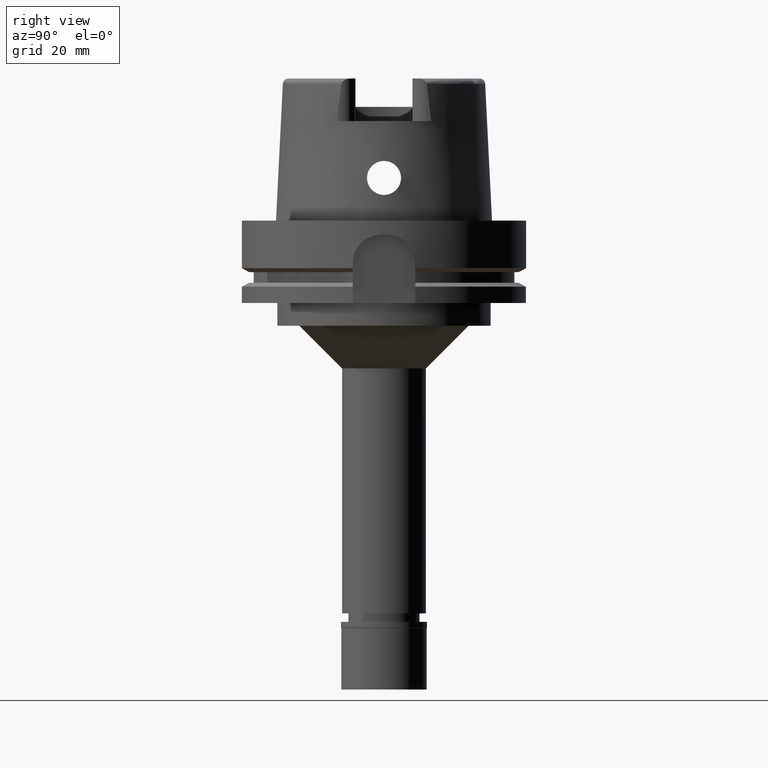
[diagram: clean part render]
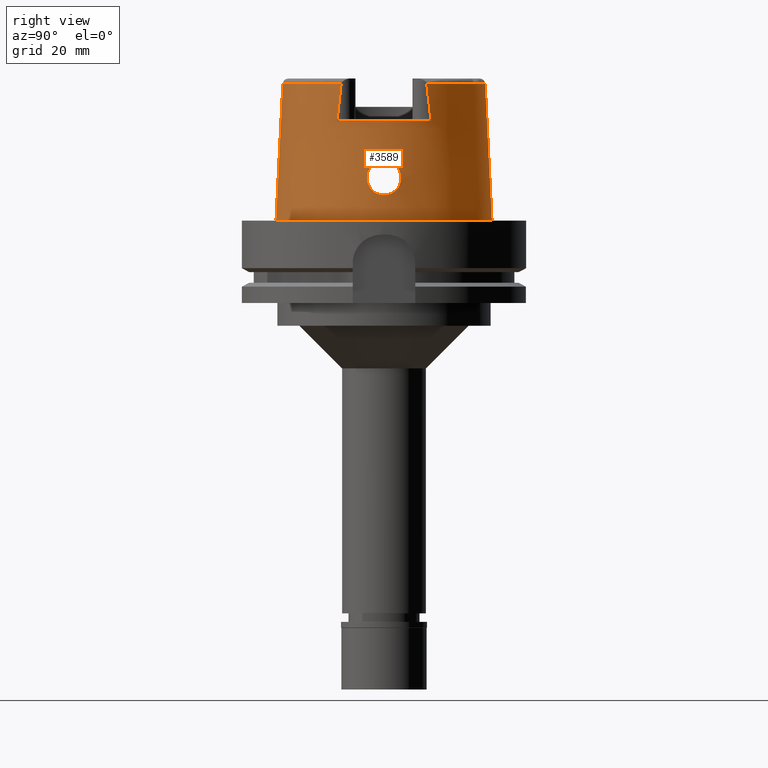
[diagram: same view with one face highlighted and labeled with its STEP entity id]
A machine part, right view. The second image highlights one B-rep face of the part: STEP entity #3589.
In plain terms, the highlighted conical surface has half-angle 2.862 deg.
Its self-contained STEP definition (entity closure, byte-faithful):
#7 = CARTESIAN_POINT ( 'NONE',  ( 36.72267357466340343, 5.422019584408327653, 17.58897493193915906 ) ) ;
#30 = CARTESIAN_POINT ( 'NONE',  ( 0.0000000000000000000, 0.0000000000000000000, 48.09987853799000135 ) ) ;
#33 = CARTESIAN_POINT ( 'NONE',  ( 37.10389505768392127, -4.887757585974280339, 11.51449243856041704 ) ) ;
#94 = CARTESIAN_POINT ( 'NONE',  ( 36.94822053459562738, -5.554798339131356677, 12.73190405547800275 ) ) ;
#95 = CARTESIAN_POINT ( 'NONE',  ( 36.84474273342814143, 3.423711952793725644, 19.92753559525237250 ) ) ;
#193 = CARTESIAN_POINT ( 'NONE',  ( 32.25000000000000000, -16.05145953505061129, 39.57800528808439822 ) ) ;
#208 = B_SPLINE_CURVE_WITH_KNOTS ( 'NONE', 3,
 ( #2250, #1861, #193, #3583 ),
 .UNSPECIFIED., .F., .F.,
 ( 4, 4 ),
 ( 0.0000000000000000000, 1.000000000000000000 ),
 .UNSPECIFIED. ) ;
#211 = VERTEX_POINT ( 'NONE', #5477 ) ;
#227 = ORIENTED_EDGE ( 'NONE', *, *, #3927, .F. ) ;
#264 = CARTESIAN_POINT ( 'NONE',  ( 37.48354635218326791, 1.945613778291623630, 9.322656526188687565 ) ) ;
#267 = DIRECTION ( 'NONE',  ( 0.0000000000000000000, -1.000000000000000000, 0.0000000000000000000 ) ) ;
#287 = CARTESIAN_POINT ( 'NONE',  ( 36.94004933455386208, -5.584378040729330195, 12.80547493326117703 ) ) ;
#288 = CARTESIAN_POINT ( 'NONE',  ( 37.46510143188385200, 2.193262516984797461, 9.415134949132264452 ) ) ;
#304 = AXIS2_PLACEMENT_3D ( 'NONE', #4324, #3486, #3924 ) ;
#320 = CARTESIAN_POINT ( 'NONE',  ( 36.90757951137189252, -5.696189673111457630, 13.11208310119264908 ) ) ;
#321 = CARTESIAN_POINT ( 'NONE',  ( 36.71984044655581414, 5.850219281318126185, 16.34658812604090272 ) ) ;
#351 = CARTESIAN_POINT ( 'NONE',  ( 36.74230684364644617, -5.981357832372287575, 15.48226559619353004 ) ) ;
#352 = CARTESIAN_POINT ( 'NONE',  ( 36.95523982656138884, 5.529030572528006005, 12.66964793382715726 ) ) ;
#375 = CARTESIAN_POINT ( 'NONE',  ( 36.71996599173408526, -5.517288947097909180, 17.35803693623842392 ) ) ;
#376 = CARTESIAN_POINT ( 'NONE',  ( 36.80815762369860522, 5.957537315262850797, 14.26277308271544797 ) ) ;
#402 = EDGE_CURVE ( 'NONE', #2395, #1645, #2281, .T. ) ;
#404 = CARTESIAN_POINT ( 'NONE',  ( 36.95774489227890314, 5.519693041102756048, 12.64763322360844278 ) ) ;
#438 = CARTESIAN_POINT ( 'NONE',  ( 37.00631580238255935, 5.327637900931077475, 12.23846285490348151 ) ) ;
#440 = CARTESIAN_POINT ( 'NONE',  ( 0.0000000000000000000, -38.00001658251999714, 6.821210263297000155E-13 ) ) ;
#468 = CARTESIAN_POINT ( 'NONE',  ( 37.45644412486604580, -2.300685249213640038, 9.458609365831746274 ) ) ;
#484 = CARTESIAN_POINT ( 'NONE',  ( 36.84722144884961637, 3.382054583819614990, 19.95620573746380799 ) ) ;
#519 = CARTESIAN_POINT ( 'NONE',  ( 32.25000000000000000, 15.55558130752602430, 43.94359285154830985 ) ) ;
#628 = CARTESIAN_POINT ( 'NONE',  ( 36.94593093642748016, -0.7414479164590389582, 20.96696163295313653 ) ) ;
#643 = DIRECTION ( 'NONE',  ( 0.0000000000000000000, 0.0000000000000000000, 1.000000000000000000 ) ) ;
#657 = CARTESIAN_POINT ( 'NONE',  ( 37.44482247248136986, 2.444141203554807795, 9.517352663551536196 ) ) ;
#668 = CARTESIAN_POINT ( 'NONE',  ( 0.0000000000000000000, 0.0000000000000000000, 1.023181539494999863E-12 ) ) ;
#693 = CARTESIAN_POINT ( 'NONE',  ( 37.55000165824999669, 0.3725651092410616205, 9.000000000000001776 ) ) ;
#718 = CARTESIAN_POINT ( 'NONE',  ( 36.71471743786340625, -5.699807342222302786, 16.91677120291535630 ) ) ;
#743 = CARTESIAN_POINT ( 'NONE',  ( 36.72592427972574569, -5.364110251283705999, 17.68975218841853803 ) ) ;
#776 = CARTESIAN_POINT ( 'NONE',  ( 36.81715631362708763, -3.887142167174182816, 19.57163267875188595 ) ) ;
#777 = CARTESIAN_POINT ( 'NONE',  ( 36.71655597566285678, 5.670117240180092999, 16.96656458698912573 ) ) ;
#787 = CARTESIAN_POINT ( 'NONE',  ( 37.55000165825000380, 0.0000000000000000000, 9.000000000000000000 ) ) ;
#808 = CARTESIAN_POINT ( 'NONE',  ( 36.75857722100720082, -5.999184118844141267, 15.10173734126936473 ) ) ;
#809 = CARTESIAN_POINT ( 'NONE',  ( 37.35521687651932154, 3.298586860854181957, 9.988077525046296756 ) ) ;
#829 = CARTESIAN_POINT ( 'NONE',  ( 36.71826982678383189, 5.576903453816120404, 17.21342714078873115 ) ) ;
#858 = CARTESIAN_POINT ( 'NONE',  ( 36.71763611367480706, 5.802818758824429324, 16.53846350265038012 ) ) ;
#868 = CARTESIAN_POINT ( 'NONE',  ( 37.44044173439526446, -2.487510234731720171, 9.539756727519119295 ) ) ;
#886 = CARTESIAN_POINT ( 'NONE',  ( 36.78447426091580041, 4.390347064633015606, 19.09029678280415965 ) ) ;
#897 = VERTEX_POINT ( 'NONE', #4031 ) ;
#905 = DIRECTION ( 'NONE',  ( 0.0000000000000000000, 0.0000000000000000000, -1.000000000000000000 ) ) ;
#911 = CARTESIAN_POINT ( 'NONE',  ( 32.25000000000000000, 16.55285457013000183, 35.00000000000000000 ) ) ;
#922 = ORIENTED_EDGE ( 'NONE', *, *, #2487, .F. ) ;
#969 = CARTESIAN_POINT ( 'NONE',  ( 37.16180421870889461, -4.583096864712658203, 11.12637670602710571 ) ) ;
#974 = CARTESIAN_POINT ( 'NONE',  ( 32.25000552016999222, -15.06439830629000021, 48.10004155012000382 ) ) ;
#995 = CARTESIAN_POINT ( 'NONE',  ( 36.88711994964290142, 2.625412980765178705, 20.39673761976636257 ) ) ;
#1012 = CARTESIAN_POINT ( 'NONE',  ( 36.93369841153610622, 1.519969757007889832, 20.86588656624419968 ) ) ;
#1049 = EDGE_CURVE ( 'NONE', #3246, #4046, #5103, .T. ) ;
#1127 = CARTESIAN_POINT ( 'NONE',  ( 36.85123313282241497, -3.313108648784872212, 20.00235078773789610 ) ) ;
#1128 = CARTESIAN_POINT ( 'NONE',  ( 37.55000165825000380, 0.0000000000000000000, 9.000000000000000000 ) ) ;
#1159 = CARTESIAN_POINT ( 'NONE',  ( 36.85457335903686271, -3.253798265162993975, 20.04124897951066586 ) ) ;
#1185 = CARTESIAN_POINT ( 'NONE',  ( 36.91960058821116775, -1.808267391337456287, 20.72193690257373433 ) ) ;
#1186 = CARTESIAN_POINT ( 'NONE',  ( 37.06201828075850102, 5.085026754920343173, 11.80942053229219546 ) ) ;
#1191 = DIRECTION ( 'NONE',  ( 0.0000000000000000000, 1.000000000000000000, 0.0000000000000000000 ) ) ;
#1194 = CARTESIAN_POINT ( 'NONE',  ( 37.42948613190983309, -2.608080179526660380, 9.595763437132761808 ) ) ;
#1218 = CARTESIAN_POINT ( 'NONE',  ( 36.90156843378151308, -2.292518513694088877, 20.54476195605109368 ) ) ;
#1219 = CARTESIAN_POINT ( 'NONE',  ( 36.74922096801761029, 4.946676914269941605, 18.40126551930861964 ) ) ;
#1226 = CARTESIAN_POINT ( 'NONE',  ( 37.27342246940378345, -3.931114298059343870, 10.44490115557643861 ) ) ;
#1240 = CARTESIAN_POINT ( 'NONE',  ( 36.85246824458691606, -5.860252696467920686, 13.69782209348205804 ) ) ;
#1241 = CARTESIAN_POINT ( 'NONE',  ( 37.35850046496491217, 3.271442713560498206, 9.970292572780893536 ) ) ;
#1268 = CARTESIAN_POINT ( 'NONE',  ( 36.74416363428795052, 5.999695096182692033, 15.38426938620559170 ) ) ;
#1294 = CARTESIAN_POINT ( 'NONE',  ( 36.90767284457509589, 5.704294105478040500, 13.09073213766312804 ) ) ;
#1323 = CARTESIAN_POINT ( 'NONE',  ( 32.24997259521845194, 15.06456602766139952, 48.09965195381819569 ) ) ;
#1328 = CARTESIAN_POINT ( 'NONE',  ( 36.96692811447792337, -5.486345123641728883, 12.56527835986653940 ) ) ;
#1361 = ORIENTED_EDGE ( 'NONE', *, *, #4513, .T. ) ;
#1374 = CARTESIAN_POINT ( 'NONE',  ( 37.07431617320159489, -5.027968615222170534, 11.72590029850743854 ) ) ;
#1375 = CARTESIAN_POINT ( 'NONE',  ( 36.82572834283891439, 3.739103409472152251, 19.69347930708578076 ) ) ;
#1467 = CARTESIAN_POINT ( 'NONE',  ( 37.42924552239432501, 2.615721727719046541, 9.596655347575488548 ) ) ;
#1545 = CARTESIAN_POINT ( 'NONE',  ( 36.90313027499023946, -2.254538170107786232, 20.56033827074029929 ) ) ;
#1549 = CARTESIAN_POINT ( 'NONE',  ( 32.25000000000000000, 16.55285457013000183, 35.00000000000000000 ) ) ;
#1554 = CIRCLE ( 'NONE', #304, 36.24995854370000359 ) ;
#1581 = CARTESIAN_POINT ( 'NONE',  ( 36.87477302260239753, -2.874498642703776419, 20.26753687286203487 ) ) ;
#1610 = CARTESIAN_POINT ( 'NONE',  ( 36.92871493951681572, -1.515123200016508465, 20.80912843645324273 ) ) ;
#1611 = CARTESIAN_POINT ( 'NONE',  ( 36.79297988199979130, 4.259196576708383475, 19.22603776392183406 ) ) ;
#1616 = CARTESIAN_POINT ( 'NONE',  ( 37.20985621195186610, -4.309484051094956136, 10.82514528166413115 ) ) ;
#1630 = CARTESIAN_POINT ( 'NONE',  ( 36.90486097320912506, -2.211800909003299065, 20.57755752649597270 ) ) ;
#1631 = CARTESIAN_POINT ( 'NONE',  ( 36.73088728630788324, 5.963273442928997525, 15.76995501664744559 ) ) ;
#1645 = VERTEX_POINT ( 'NONE', #1323 ) ;
#1661 = CARTESIAN_POINT ( 'NONE',  ( 36.76210510961053757, -5.999969291128361526, 15.02948134560296189 ) ) ;
#1662 = CARTESIAN_POINT ( 'NONE',  ( 37.23074821846914517, 4.183444221319813749, 10.69895465927429790 ) ) ;
#1666 = FACE_OUTER_BOUND ( 'NONE', #4428, .T. ) ;
#1670 = CARTESIAN_POINT ( 'NONE',  ( 37.45167754845740404, -2.358007411872085957, 9.482699018399465274 ) ) ;
#1691 = CARTESIAN_POINT ( 'NONE',  ( 37.27380537146910200, 3.905228964637531330, 10.44364606190405986 ) ) ;
#1712 = DIRECTION ( 'NONE',  ( 0.9060280460804950309, -0.4232176505245974218, 0.0000000000000000000 ) ) ;
#1715 = CARTESIAN_POINT ( 'NONE',  ( 36.71654653490774933, 5.716830651085251347, 16.82420974150458193 ) ) ;
#1733 = AXIS2_PLACEMENT_3D ( 'NONE', #668, #643, #3307 ) ;
#1744 = CARTESIAN_POINT ( 'NONE',  ( 36.94998175923000616, 0.7278236856474631367, 21.00000000000000355 ) ) ;
#1774 = CARTESIAN_POINT ( 'NONE',  ( 37.05825142641074876, -5.102631713474581332, 11.84271860122617603 ) ) ;
#1775 = CARTESIAN_POINT ( 'NONE',  ( 36.83279304894241335, 3.623117239827894132, 19.78433902146063161 ) ) ;
#1847 = CARTESIAN_POINT ( 'NONE',  ( 36.89720180196173516, 2.396385874092441970, 20.50089800300801457 ) ) ;
#1861 = CARTESIAN_POINT ( 'NONE',  ( 32.25000000000000000, -15.55533878959061234, 43.94468580479106379 ) ) ;
#1879 = CARTESIAN_POINT ( 'NONE',  ( 37.45939340440274634, 2.264876689967703971, 9.443880539945848085 ) ) ;
#1967 = CARTESIAN_POINT ( 'NONE',  ( 36.80191179852743488, -4.125073597715507745, 19.35752356896822235 ) ) ;
#1977 = EDGE_CURVE ( 'NONE', #4046, #3246, #2216, .T. ) ;
#1985 = LINE ( 'NONE', #3703, #4991 ) ;
#1988 = CARTESIAN_POINT ( 'NONE',  ( 36.91466364792063359, -1.955066589415452416, 20.67420690998043042 ) ) ;
#2026 = CARTESIAN_POINT ( 'NONE',  ( 36.76087165488235797, -5.999800204498523470, 15.05438827538915092 ) ) ;
#2027 = CARTESIAN_POINT ( 'NONE',  ( 36.76566029138945169, 5.999906815838277119, 14.95958094295161267 ) ) ;
#2054 = CARTESIAN_POINT ( 'NONE',  ( 36.71620885480513863, -5.813391255878267216, 16.53515844540856250 ) ) ;
#2055 = CARTESIAN_POINT ( 'NONE',  ( 36.77170340282817307, 5.998323807747826031, 14.84586871748389569 ) ) ;
#2059 = CARTESIAN_POINT ( 'NONE',  ( 37.44575798109403308, -2.427495654721145257, 9.512690912807336474 ) ) ;
#2078 = CARTESIAN_POINT ( 'NONE',  ( 36.78368377135412715, 5.989813296407689336, 14.63850693621158250 ) ) ;
#2105 = CARTESIAN_POINT ( 'NONE',  ( 37.17923918027254615, -4.486608826938915939, 11.01410227273799336 ) ) ;
#2106 = CARTESIAN_POINT ( 'NONE',  ( 36.86953088259854638, 5.819979767177820840, 13.48870076563281550 ) ) ;
#2109 = EDGE_CURVE ( 'NONE', #3667, #1645, #3504, .T. ) ;
#2114 = CARTESIAN_POINT ( 'NONE',  ( 37.45579137639118983, -2.308598250137419594, 9.461905677811456528 ) ) ;
#2129 = CARTESIAN_POINT ( 'NONE',  ( 36.82225838300249876, 5.930942061816907973, 14.07103620850404724 ) ) ;
#2154 = CARTESIAN_POINT ( 'NONE',  ( 36.94685047858486371, -5.559788466733562196, 12.74416401146934774 ) ) ;
#2212 = CARTESIAN_POINT ( 'NONE',  ( 32.24997259521845194, 15.06456602766139952, 48.09965195381819569 ) ) ;
#2216 = B_SPLINE_CURVE_WITH_KNOTS ( 'NONE', 3,
 ( #1128, #693, #4496, #2442, #2393, #3211, #264, #4121, #288, #2865, #4149, #1879, #657, #1467, #4893, #2751, #4473, #2358, #4067, #1241, #3821, #809, #5084, #3323, #4247, #4638, #1691, #4185, #5487, #4667, #1662, #2977, #2559, #5054, #5030, #4695, #2526, #3406, #4280, #1186, #2953, #438, #3350, #5138, #2890, #404, #352, #1294, #2106, #2129, #376, #2585, #2078, #5109, #2055, #3769, #2027, #4603, #1268, #1631, #321, #858, #1715, #777, #5514, #829, #3379, #5542, #2474, #3845, #7, #3796, #1219, #4217, #3013, #3431, #4727, #886, #3745, #2930, #5461, #1611, #2502, #2238, #1375, #1775, #4857, #95, #484, #3930, #3094, #4834, #995, #3951, #1847, #3064, #1012, #1744, #5257 ),
 .UNSPECIFIED., .F., .F.,
 ( 4, 2, 2, 1, 1, 1, 2, 2, 2, 2, 1, 1, 1, 2, 2, 2, 2, 1, 1, 2, 2, 2, 2, 2, 2, 1, 1, 2, 2, 2, 2, 2, 1, 2, 2, 2, 2, 1, 1, 1, 1, 2, 2, 2, 2, 2, 1, 1, 2, 2, 2, 1, 2, 2, 2, 1, 2, 2, 4 ),
 ( 0.0000000000000000000, 0.06250000000000442701, 0.09375000000000670297, 0.1093750000000078687, 0.1171875000000084516, 0.1210937500000087291, 0.1230468750000089373, 0.1250000000000091316, 0.1562500000000126288, 0.1718750000000142941, 0.1796875000000152101, 0.1835937500000157097, 0.1855468750000159872, 0.1865234375000161260, 0.1875000000000162925, 0.2187500000000209277, 0.2343750000000233980, 0.2421875000000246470, 0.2460937500000253686, 0.2480468750000256184, 0.2500000000000258682, 0.2812500000000296985, 0.2968750000000316414, 0.3125000000000335842, 0.3437500000000374145, 0.3593750000000392464, 0.3671875000000403566, 0.3710937500000408562, 0.3750000000000413558, 0.4375000000000515143, 0.4687500000000566214, 0.4843750000000590084, 0.4921875000000603406, 0.4960937500000610068, 0.5000000000000617284, 0.5625000000000718314, 0.5937500000000771605, 0.6093750000000798250, 0.6171875000000809353, 0.6210937500000811573, 0.6230468750000813793, 0.6240234375000811573, 0.6250000000000810463, 0.6875000000000641709, 0.7187500000000557332, 0.7343750000000514033, 0.7421875000000489608, 0.7460937500000476286, 0.7480468750000470735, 0.7500000000000465183, 0.7812500000000396350, 0.7968750000000361933, 0.8046875000000345279, 0.8125000000000328626, 0.8437500000000268674, 0.8593750000000236478, 0.8671875000000222045, 0.8750000000000207612, 1.000000000000000000 ),
 .UNSPECIFIED. ) ;
#2238 = CARTESIAN_POINT ( 'NONE',  ( 36.81172258308835410, 3.966476796711561281, 19.50617699077874434 ) ) ;
#2250 = CARTESIAN_POINT ( 'NONE',  ( 32.25000552016999222, -15.06439830629000021, 48.10004155012000382 ) ) ;
#2281 = CIRCLE ( 'NONE', #3988, 35.59494289391000166 ) ;
#2344 = ORIENTED_EDGE ( 'NONE', *, *, #4795, .T. ) ;
#2358 = CARTESIAN_POINT ( 'NONE',  ( 37.37200879162888612, 3.157378145734959229, 9.897493814651731725 ) ) ;
#2385 = CONICAL_SURFACE ( 'NONE', #5167, 36.79747973821000073, 0.04996004983832824653 ) ;
#2393 = CARTESIAN_POINT ( 'NONE',  ( 37.50998555997325923, 1.517592506706888944, 9.191699911531014067 ) ) ;
#2395 = VERTEX_POINT ( 'NONE', #3317 ) ;
#2416 = CARTESIAN_POINT ( 'NONE',  ( 36.78131032407246437, -6.000419801347448789, 14.64910524596444752 ) ) ;
#2441 = CARTESIAN_POINT ( 'NONE',  ( 36.89778564757065027, -5.727707615562732890, 13.21009850542787234 ) ) ;
#2442 = CARTESIAN_POINT ( 'NONE',  ( 37.51951320242007171, 1.326388423841376341, 9.145214055518373186 ) ) ;
#2473 = CARTESIAN_POINT ( 'NONE',  ( 36.79435038799678637, -4.238498976145237407, 19.24680091854477482 ) ) ;
#2474 = CARTESIAN_POINT ( 'NONE',  ( 36.71902651044838706, 5.548463823210859402, 17.28354746238051476 ) ) ;
#2487 = EDGE_CURVE ( 'NONE', #4998, #211, #208, .T. ) ;
#2501 = CARTESIAN_POINT ( 'NONE',  ( 36.77254798616192488, -4.561075753684214362, 18.92336580081888187 ) ) ;
#2502 = CARTESIAN_POINT ( 'NONE',  ( 36.80255027986323313, 4.111923164467505387, 19.37386066774104876 ) ) ;
#2525 = CARTESIAN_POINT ( 'NONE',  ( 36.85914309946118550, -3.171395853946633814, 20.09388249812419147 ) ) ;
#2526 = CARTESIAN_POINT ( 'NONE',  ( 37.13186683566623714, 4.746792466659889520, 11.32880154398542238 ) ) ;
#2528 = DIRECTION ( 'NONE',  ( 0.0000000000000000000, 0.0000000000000000000, -1.000000000000000000 ) ) ;
#2531 = CARTESIAN_POINT ( 'NONE',  ( 37.21715930252478444, -4.266296845193235932, 10.78113008886838387 ) ) ;
#2558 = CARTESIAN_POINT ( 'NONE',  ( 36.98653479186649662, -5.410826303740267740, 12.39968017808450007 ) ) ;
#2559 = CARTESIAN_POINT ( 'NONE',  ( 37.22566677179783312, 4.214813397353089464, 10.72969554207356957 ) ) ;
#2579 = ORIENTED_EDGE ( 'NONE', *, *, #4109, .T. ) ;
#2585 = CARTESIAN_POINT ( 'NONE',  ( 36.78949159558496262, 5.983486453679611294, 14.54521603347067682 ) ) ;
#2591 = CARTESIAN_POINT ( 'NONE',  ( 37.31986989405127986, -3.597220678854288867, 10.18165942256945300 ) ) ;
#2607 = CARTESIAN_POINT ( 'NONE',  ( 32.25000000000000000, 16.05167218341025048, 39.57715456453897218 ) ) ;
#2659 = CIRCLE ( 'NONE', #5362, 35.59494289391000166 ) ;
#2716 = CARTESIAN_POINT ( 'NONE',  ( 36.94998175923000616, -1.394597051988999957E-13, 21.00000000000000000 ) ) ;
#2751 = CARTESIAN_POINT ( 'NONE',  ( 37.39389957565203559, 2.961858504022859773, 9.781037490228241538 ) ) ;
#2840 = CARTESIAN_POINT ( 'NONE',  ( 36.72417677241254097, -5.403958486918482684, 17.60866077582813105 ) ) ;
#2864 = CARTESIAN_POINT ( 'NONE',  ( 36.81012590807582541, -3.998932515664909371, 19.47498797828445660 ) ) ;
#2865 = CARTESIAN_POINT ( 'NONE',  ( 37.46231013038573110, 2.228496234772830320, 9.429186360535267042 ) ) ;
#2889 = CARTESIAN_POINT ( 'NONE',  ( 36.84054995969432156, -3.500639162329626686, 19.87691744488378731 ) ) ;
#2890 = CARTESIAN_POINT ( 'NONE',  ( 36.96306944284773266, 5.499648888793470469, 12.60114551949024175 ) ) ;
#2914 = LINE ( 'NONE', #4624, #3831 ) ;
#2929 = CARTESIAN_POINT ( 'NONE',  ( 36.72095926934373011, -5.487190704613273518, 17.42776760323148721 ) ) ;
#2930 = CARTESIAN_POINT ( 'NONE',  ( 36.79090408789131317, 4.291162142293005743, 19.19358268079189145 ) ) ;
#2933 = CARTESIAN_POINT ( 'NONE',  ( 0.0000000000000000000, 0.0000000000000000000, 24.04993926899999934 ) ) ;
#2937 = CARTESIAN_POINT ( 'NONE',  ( 37.37920154021072250, -3.099554088567648691, 9.858807036769944077 ) ) ;
#2952 = CARTESIAN_POINT ( 'NONE',  ( 36.86962136150776814, -5.813915311669151542, 13.50336500531141048 ) ) ;
#2953 = CARTESIAN_POINT ( 'NONE',  ( 37.03946302268951030, 5.186539886740288097, 11.97691283089743486 ) ) ;
#2958 = CARTESIAN_POINT ( 'NONE',  ( 37.55000165824998959, -0.7490591626622358223, 8.999999999999996447 ) ) ;
#2977 = CARTESIAN_POINT ( 'NONE',  ( 37.22750586228801950, 4.203499434555483028, 10.71855292225115264 ) ) ;
#3013 = CARTESIAN_POINT ( 'NONE',  ( 36.76916009664777363, 4.628588925112559593, 18.81937011862670417 ) ) ;
#3037 = CARTESIAN_POINT ( 'NONE',  ( 37.06944078969446821, -5.050823309917592319, 11.76108891319020344 ) ) ;
#3064 = CARTESIAN_POINT ( 'NONE',  ( 36.89909629768656885, 2.351861135407929737, 20.52010484799380308 ) ) ;
#3094 = CARTESIAN_POINT ( 'NONE',  ( 36.86792965852487924, 3.018333182346123245, 20.18926292847165627 ) ) ;
#3103 = VERTEX_POINT ( 'NONE', #440 ) ;
#3211 = CARTESIAN_POINT ( 'NONE',  ( 37.49283580356894419, 1.803149696084554554, 9.276494919453586618 ) ) ;
#3246 = VERTEX_POINT ( 'NONE', #2716 ) ;
#3261 = CARTESIAN_POINT ( 'NONE',  ( 36.90823929613227250, -2.126273191705745802, 20.61103980981503625 ) ) ;
#3296 = CARTESIAN_POINT ( 'NONE',  ( 36.74781535825621148, -5.991733129800534741, 15.33912322332482248 ) ) ;
#3307 = DIRECTION ( 'NONE',  ( 0.0000000000000000000, -1.000000000000000000, 0.0000000000000000000 ) ) ;
#3317 = CARTESIAN_POINT ( 'NONE',  ( 0.0000000000000000000, 35.59494289391000166, 48.09987853799000135 ) ) ;
#3322 = CARTESIAN_POINT ( 'NONE',  ( 36.79780175131856623, -4.187045417438282513, 19.29764023398862705 ) ) ;
#3323 = CARTESIAN_POINT ( 'NONE',  ( 37.33690346294223872, 3.448871329339629810, 10.08744184717557424 ) ) ;
#3328 = CARTESIAN_POINT ( 'NONE',  ( 0.0000000000000000000, 0.0000000000000000000, 48.09987853799000135 ) ) ;
#3331 = CARTESIAN_POINT ( 'NONE',  ( 37.21841516280286299, -4.258839404284195496, 10.77359671049547352 ) ) ;
#3349 = CARTESIAN_POINT ( 'NONE',  ( 36.73711114790026500, -5.141475257625118367, 18.09899811072335041 ) ) ;
#3350 = CARTESIAN_POINT ( 'NONE',  ( 36.98991360892826918, 5.395393653834454462, 12.37181202511787781 ) ) ;
#3378 = CARTESIAN_POINT ( 'NONE',  ( 36.80587811518763175, -5.968770580322074970, 14.27426339060672689 ) ) ;
#3379 = CARTESIAN_POINT ( 'NONE',  ( 36.71869691278727288, 5.560410601725479296, 17.25435409545829302 ) ) ;
#3387 = CARTESIAN_POINT ( 'NONE',  ( 37.51913731733983326, -1.534104571100818548, 9.142248273750922749 ) ) ;
#3406 = CARTESIAN_POINT ( 'NONE',  ( 37.10850795906518584, 4.864945071334615179, 11.48687514057927217 ) ) ;
#3431 = CARTESIAN_POINT ( 'NONE',  ( 36.77364782977029023, 4.558384542440498954, 18.90301816070205376 ) ) ;
#3486 = DIRECTION ( 'NONE',  ( 0.0000000000000000000, 0.0000000000000000000, -1.000000000000000000 ) ) ;
#3490 = CARTESIAN_POINT ( 'NONE',  ( 37.12700342142172616, -4.770419183676180452, 11.35554695574109552 ) ) ;
#3504 = B_SPLINE_CURVE_WITH_KNOTS ( 'NONE', 3,
 ( #911, #2607, #519, #2212 ),
 .UNSPECIFIED., .F., .F.,
 ( 4, 4 ),
 ( 0.0000000000000000000, 1.000000000000000000 ),
 .UNSPECIFIED. ) ;
#3583 = CARTESIAN_POINT ( 'NONE',  ( 32.25000000000000000, -16.55285457013000183, 35.00000000000000000 ) ) ;
#3589 = ADVANCED_FACE ( 'NONE', ( #1666, #3771 ), #2385, .T. ) ;
#3593 = CARTESIAN_POINT ( 'NONE',  ( 36.94998175922997774, -0.3631582503455698663, 20.99999999999999289 ) ) ;
#3667 = VERTEX_POINT ( 'NONE', #1549 ) ;
#3677 = CARTESIAN_POINT ( 'NONE',  ( 36.90187724947978154, -2.285052347103651904, 20.54784456235081080 ) ) ;
#3703 = CARTESIAN_POINT ( 'NONE',  ( 0.002482252536764999965, 35.59494263424999616, 48.09987853799000135 ) ) ;
#3743 = CARTESIAN_POINT ( 'NONE',  ( 36.92287895974416045, -5.644574785718466714, 12.96493802535467310 ) ) ;
#3745 = CARTESIAN_POINT ( 'NONE',  ( 36.78894780111293983, 4.321307243015691135, 19.16266128979364680 ) ) ;
#3768 = CARTESIAN_POINT ( 'NONE',  ( 36.73238964403952878, -5.953612642406834965, 15.76901430466949527 ) ) ;
#3769 = CARTESIAN_POINT ( 'NONE',  ( 36.76804647207943333, 5.999429092852296641, 14.91417425355549753 ) ) ;
#3771 = FACE_BOUND ( 'NONE', #4039, .T. ) ;
#3795 = CARTESIAN_POINT ( 'NONE',  ( 36.85046125195010802, -3.326708208071284645, 19.99331193239976301 ) ) ;
#3796 = CARTESIAN_POINT ( 'NONE',  ( 36.73062635922385510, 5.263057009966223276, 17.90742315769155013 ) ) ;
#3802 = CARTESIAN_POINT ( 'NONE',  ( 37.19964045387373375, -4.369297902720451710, 10.88739804151808599 ) ) ;
#3821 = CARTESIAN_POINT ( 'NONE',  ( 37.35653249525512365, 3.287729809331878972, 9.980948807356465835 ) ) ;
#3831 = VECTOR ( 'NONE', #4137, 1000.000000000000227 ) ;
#3845 = CARTESIAN_POINT ( 'NONE',  ( 36.71910958072908926, 5.545544434581134219, 17.29062471908193999 ) ) ;
#3873 = CARTESIAN_POINT ( 'NONE',  ( 37.07944034948617684, -5.003809135605428615, 11.68910189936455346 ) ) ;
#3924 = DIRECTION ( 'NONE',  ( 0.8896561898442558736, 0.4566309931134779343, 0.0000000000000000000 ) ) ;
#3927 = EDGE_CURVE ( 'NONE', #2395, #5018, #1985, .T. ) ;
#3930 = CARTESIAN_POINT ( 'NONE',  ( 36.85894363251251349, 3.184285589736353561, 20.08887233118177207 ) ) ;
#3951 = CARTESIAN_POINT ( 'NONE',  ( 36.89319844010307037, 2.488527337152416585, 20.45983294518178752 ) ) ;
#3988 = AXIS2_PLACEMENT_3D ( 'NONE', #3328, #5305, #1191 ) ;
#4031 = CARTESIAN_POINT ( 'NONE',  ( 1.065814103639999922E-14, -35.59494289391000166, 48.09987853799000135 ) ) ;
#4039 = EDGE_LOOP ( 'NONE', ( #4131, #4655 ) ) ;
#4046 = VERTEX_POINT ( 'NONE', #4663 ) ;
#4067 = CARTESIAN_POINT ( 'NONE',  ( 37.36305418552996827, 3.233430167438358094, 9.945685231382983105 ) ) ;
#4085 = ORIENTED_EDGE ( 'NONE', *, *, #2109, .F. ) ;
#4109 = EDGE_CURVE ( 'NONE', #4998, #897, #2659, .T. ) ;
#4120 = CARTESIAN_POINT ( 'NONE',  ( 36.93068084709790355, -5.617683048011617331, 12.89133533384522501 ) ) ;
#4121 = CARTESIAN_POINT ( 'NONE',  ( 37.47145815582883444, 2.110898902810725453, 9.383189747273794623 ) ) ;
#4131 = ORIENTED_EDGE ( 'NONE', *, *, #1977, .F. ) ;
#4137 = DIRECTION ( 'NONE',  ( 5.154182075151068004E-05, -0.04993927430816067631, -0.9987522546783135224 ) ) ;
#4148 = CARTESIAN_POINT ( 'NONE',  ( 36.90237964644844482, -2.272847603787034210, 20.55285577761289773 ) ) ;
#4149 = CARTESIAN_POINT ( 'NONE',  ( 37.46043437577900193, 2.251970359336563643, 9.438634198803985242 ) ) ;
#4183 = CARTESIAN_POINT ( 'NONE',  ( 36.71932879702811903, -5.538168865237840244, 17.30841963624625635 ) ) ;
#4185 = CARTESIAN_POINT ( 'NONE',  ( 37.25586636964880682, 4.023786227868930254, 10.54893967561953971 ) ) ;
#4216 = CARTESIAN_POINT ( 'NONE',  ( 36.75576063047476083, -4.821039313109858782, 18.59330048863184359 ) ) ;
#4217 = CARTESIAN_POINT ( 'NONE',  ( 36.75653007627435187, 4.828228318381600381, 18.56845981741573581 ) ) ;
#4226 = ORIENTED_EDGE ( 'NONE', *, *, #402, .T. ) ;
#4246 = CARTESIAN_POINT ( 'NONE',  ( 36.93377846801995901, -1.320312059241084857, 20.85622490190666056 ) ) ;
#4247 = CARTESIAN_POINT ( 'NONE',  ( 37.31760234894615280, 3.596830972136777049, 10.19359969812786204 ) ) ;
#4280 = CARTESIAN_POINT ( 'NONE',  ( 37.09653683465856489, 4.923253219138731929, 11.56912527921177691 ) ) ;
#4310 = CARTESIAN_POINT ( 'NONE',  ( 37.39725550712858393, -2.934102071677165302, 9.763118088120929627 ) ) ;
#4324 = CARTESIAN_POINT ( 'NONE',  ( 0.0000000000000000000, 0.0000000000000000000, 35.00000000000000000 ) ) ;
#4326 = CARTESIAN_POINT ( 'NONE',  ( 37.07758419378404113, -5.012585787053995823, 11.70239769250488315 ) ) ;
#4357 = CARTESIAN_POINT ( 'NONE',  ( 37.03086444102972763, -5.224993334492164188, 12.04861993316312940 ) ) ;
#4428 = EDGE_LOOP ( 'NONE', ( #922, #2579, #1361, #2344, #227, #4226, #4085, #5254 ) ) ;
#4465 = CARTESIAN_POINT ( 'NONE',  ( 36.94998175923000616, -1.394597051988999957E-13, 21.00000000000000000 ) ) ;
#4473 = CARTESIAN_POINT ( 'NONE',  ( 37.37942216537462059, 3.092179744473400049, 9.857921792024907148 ) ) ;
#4496 = CARTESIAN_POINT ( 'NONE',  ( 37.54237954429251545, 0.7534733083929300301, 9.034802869984973839 ) ) ;
#4513 = EDGE_CURVE ( 'NONE', #897, #3103, #2914, .T. ) ;
#4551 = CARTESIAN_POINT ( 'NONE',  ( 36.72196373337752817, -5.460058584531252812, 17.48791676838418496 ) ) ;
#4577 = CARTESIAN_POINT ( 'NONE',  ( 36.71957857213633503, -5.529860257529818135, 17.32825280609501917 ) ) ;
#4595 = CIRCLE ( 'NONE', #1733, 38.00001658251999714 ) ;
#4602 = CARTESIAN_POINT ( 'NONE',  ( 36.89508234378853047, -2.448813482598386049, 20.47998433089503223 ) ) ;
#4603 = CARTESIAN_POINT ( 'NONE',  ( 36.76455102892114013, 6.000017024433939028, 14.98107322157090948 ) ) ;
#4624 = CARTESIAN_POINT ( 'NONE',  ( -0.002482252536761000127, -35.59494263424999616, 48.09987853799000135 ) ) ;
#4636 = CARTESIAN_POINT ( 'NONE',  ( 36.75520430954526319, -5.997838674879559129, 15.17282634180535617 ) ) ;
#4638 = CARTESIAN_POINT ( 'NONE',  ( 37.28518751162876299, 3.827099165024492766, 10.37798948431977664 ) ) ;
#4646 = CARTESIAN_POINT ( 'NONE',  ( 37.42175158480240782, -2.689182493102491911, 9.635601683293112174 ) ) ;
#4655 = ORIENTED_EDGE ( 'NONE', *, *, #1049, .F. ) ;
#4663 = CARTESIAN_POINT ( 'NONE',  ( 37.55000165825000380, 0.0000000000000000000, 9.000000000000000000 ) ) ;
#4666 = CARTESIAN_POINT ( 'NONE',  ( 36.87019529336619428, -2.964167350734647322, 20.21776577994069513 ) ) ;
#4667 = CARTESIAN_POINT ( 'NONE',  ( 37.23558469675396054, 4.153382016415185340, 10.66978355154624758 ) ) ;
#4695 = CARTESIAN_POINT ( 'NONE',  ( 37.14350679648713083, 4.685766028682850859, 11.25122239263376045 ) ) ;
#4702 = CARTESIAN_POINT ( 'NONE',  ( 37.21423763425912767, -4.283604238094913974, 10.79870414874973150 ) ) ;
#4726 = CARTESIAN_POINT ( 'NONE',  ( 37.01935567087340928, -5.274353906018604654, 12.13803092426912578 ) ) ;
#4727 = CARTESIAN_POINT ( 'NONE',  ( 36.78079601895112916, 4.447319055202611615, 19.02795957292453011 ) ) ;
#4795 = EDGE_CURVE ( 'NONE', #3103, #5018, #4595, .T. ) ;
#4834 = CARTESIAN_POINT ( 'NONE',  ( 36.88082111616638770, 2.758243680934402420, 20.32933279423427564 ) ) ;
#4857 = CARTESIAN_POINT ( 'NONE',  ( 36.83995049438818370, 3.503891532012653354, 19.87084743243634222 ) ) ;
#4893 = CARTESIAN_POINT ( 'NONE',  ( 37.40308539955162814, 2.875079783376201181, 9.732794893241960565 ) ) ;
#4915 = CARTESIAN_POINT ( 'NONE',  ( 0.0000000000000000000, 38.00001658251999714, 1.023181539494999863E-12 ) ) ;
#4970 = CARTESIAN_POINT ( 'NONE',  ( 36.85257459690191695, -3.289353726537334932, 20.01800302749509797 ) ) ;
#4991 = VECTOR ( 'NONE', #5432, 1000.000000000000227 ) ;
#4998 = VERTEX_POINT ( 'NONE', #974 ) ;
#5006 = CARTESIAN_POINT ( 'NONE',  ( 36.86289881201272323, -3.101799390108431975, 20.13631020265455618 ) ) ;
#5018 = VERTEX_POINT ( 'NONE', #4915 ) ;
#5029 = CARTESIAN_POINT ( 'NONE',  ( 36.79486479208870264, -4.230860244584442320, 19.25440632129669538 ) ) ;
#5030 = CARTESIAN_POINT ( 'NONE',  ( 37.17830824651080235, 4.497059052848930705, 11.02314104155241381 ) ) ;
#5053 = CARTESIAN_POINT ( 'NONE',  ( 36.71922847701140569, -5.541574442523168997, 17.30024144841451061 ) ) ;
#5054 = CARTESIAN_POINT ( 'NONE',  ( 37.20135130327471273, 4.363746516823281851, 10.87729898760102287 ) ) ;
#5083 = CARTESIAN_POINT ( 'NONE',  ( 36.73198324553483474, -5.236770645753702880, 17.93428282479542091 ) ) ;
#5084 = CARTESIAN_POINT ( 'NONE',  ( 37.35442680990346531, 3.305085175312660439, 9.992361907035279600 ) ) ;
#5103 = B_SPLINE_CURVE_WITH_KNOTS ( 'NONE', 3,
 ( #4465, #3593, #628, #4246, #1610, #1185, #1988, #3261, #1630, #1545, #4148, #3677, #1218, #4602, #5405, #1581, #4666, #5006, #2525, #1159, #4970, #1127, #3795, #2889, #5486, #776, #2864, #1967, #3322, #5437, #5029, #2473, #2501, #4216, #3349, #5083, #743, #2840, #4551, #2929, #375, #4577, #4183, #5053, #718, #2054, #5513, #3768, #351, #3296, #4636, #808, #2026, #1661, #2416, #3378, #1240, #2952, #2441, #320, #3743, #4120, #287, #5460, #2154, #94, #5108, #1328, #2558, #4726, #4357, #5169, #1774, #3037, #1374, #4326, #3873, #33, #3490, #969, #2105, #3802, #1616, #4702, #2531, #3331, #1226, #2591, #2937, #4310, #4646, #1194, #868, #2059, #1670, #5550, #2114, #468, #3387, #2958, #787 ),
 .UNSPECIFIED., .F., .F.,
 ( 4, 2, 2, 1, 1, 1, 1, 2, 2, 2, 2, 1, 1, 2, 2, 2, 1, 1, 1, 2, 2, 2, 2, 2, 1, 1, 2, 2, 2, 2, 1, 1, 2, 2, 2, 2, 2, 1, 1, 1, 2, 2, 2, 2, 1, 1, 2, 2, 2, 1, 1, 1, 2, 2, 2, 2, 2, 1, 1, 2, 2, 4 ),
 ( 0.0000000000000000000, 0.06249999999997768452, 0.09374999999996652678, 0.1093749999999609479, 0.1171874999999581585, 0.1210937499999567013, 0.1230468749999558825, 0.1240234374999554801, 0.1249999999999550776, 0.1562499999999470701, 0.1718749999999429623, 0.1796874999999410472, 0.1835937499999400757, 0.1855468749999396039, 0.1874999999999391320, 0.2187499999999338862, 0.2343749999999310552, 0.2421874999999298339, 0.2460937499999292510, 0.2480468749999288902, 0.2499999999999285016, 0.3124999999999193423, 0.3437499999999147904, 0.3593749999999125144, 0.3671874999999114042, 0.3710937499999111266, 0.3730468749999112932, 0.3749999999999114042, 0.4374999999999161782, 0.4687499999999182876, 0.4843749999999194533, 0.4921874999999200639, 0.4960937499999203970, 0.4999999999999207301, 0.5624999999999246159, 0.5937499999999263922, 0.6093749999999273914, 0.6171874999999280575, 0.6210937499999285016, 0.6230468749999287237, 0.6240234374999289457, 0.6249999999999291678, 0.6562499999999329425, 0.6718749999999348299, 0.6796874999999357181, 0.6835937499999362732, 0.6855468749999366063, 0.6874999999999370504, 0.7187499999999416023, 0.7343749999999439337, 0.7421874999999449329, 0.7460937499999455991, 0.7480468749999459321, 0.7499999999999463762, 0.8124999999999588107, 0.8437499999999649170, 0.8593749999999679146, 0.8671874999999693578, 0.8710937499999701350, 0.8730468749999704681, 0.8749999999999709122, 1.000000000000000000 ),
 .UNSPECIFIED. ) ;
#5108 = CARTESIAN_POINT ( 'NONE',  ( 36.94905369668125417, -5.551755325995141099, 12.72446929271929861 ) ) ;
#5109 = CARTESIAN_POINT ( 'NONE',  ( 36.77559331271840648, 5.996032165253315505, 14.77699010449079431 ) ) ;
#5138 = CARTESIAN_POINT ( 'NONE',  ( 36.97107769578838088, 5.469187823847951435, 12.53171190271550905 ) ) ;
#5167 = AXIS2_PLACEMENT_3D ( 'NONE', #2933, #2528, #267 ) ;
#5169 = CARTESIAN_POINT ( 'NONE',  ( 37.04898031199521569, -5.144495187538904446, 11.91180162934900721 ) ) ;
#5199 = EDGE_CURVE ( 'NONE', #3667, #211, #1554, .T. ) ;
#5254 = ORIENTED_EDGE ( 'NONE', *, *, #5199, .T. ) ;
#5257 = CARTESIAN_POINT ( 'NONE',  ( 36.94998175923000616, -1.394597051988999957E-13, 21.00000000000000000 ) ) ;
#5305 = DIRECTION ( 'NONE',  ( 0.0000000000000000000, 0.0000000000000000000, -1.000000000000000000 ) ) ;
#5362 = AXIS2_PLACEMENT_3D ( 'NONE', #30, #905, #1712 ) ;
#5405 = CARTESIAN_POINT ( 'NONE',  ( 36.88764643531273180, -2.613024239901195145, 20.40470655421334101 ) ) ;
#5432 = DIRECTION ( 'NONE',  ( -5.154182075159067383E-05, 0.04993927430816067631, -0.9987522546783135224 ) ) ;
#5437 = CARTESIAN_POINT ( 'NONE',  ( 36.79603966127879033, -4.213366307935310751, 19.27173219093263512 ) ) ;
#5460 = CARTESIAN_POINT ( 'NONE',  ( 36.94480014966766390, -5.567238668685018155, 12.76255512236766876 ) ) ;
#5461 = CARTESIAN_POINT ( 'NONE',  ( 36.79221695802476688, 4.270941136393540560, 19.21417489451349780 ) ) ;
#5477 = CARTESIAN_POINT ( 'NONE',  ( 32.25000000000000000, -16.55285457013000183, 35.00000000000000000 ) ) ;
#5486 = CARTESIAN_POINT ( 'NONE',  ( 36.83120344502842158, -3.658939787614297945, 19.75930225344388802 ) ) ;
#5487 = CARTESIAN_POINT ( 'NONE',  ( 37.24668042084342545, 4.083403963793933222, 10.60328843543128130 ) ) ;
#5513 = CARTESIAN_POINT ( 'NONE',  ( 36.72724461711836597, -5.925783873527601386, 15.96080321650585709 ) ) ;
#5514 = CARTESIAN_POINT ( 'NONE',  ( 36.71753689261973364, 5.609068337178781505, 17.13138083986151017 ) ) ;
#5542 = CARTESIAN_POINT ( 'NONE',  ( 36.71889293941476495, 5.553254265573277060, 17.27187298771660906 ) ) ;
#5550 = CARTESIAN_POINT ( 'NONE',  ( 37.45415392294486878, -2.328345683996317472, 9.470178937993541268 ) ) ;